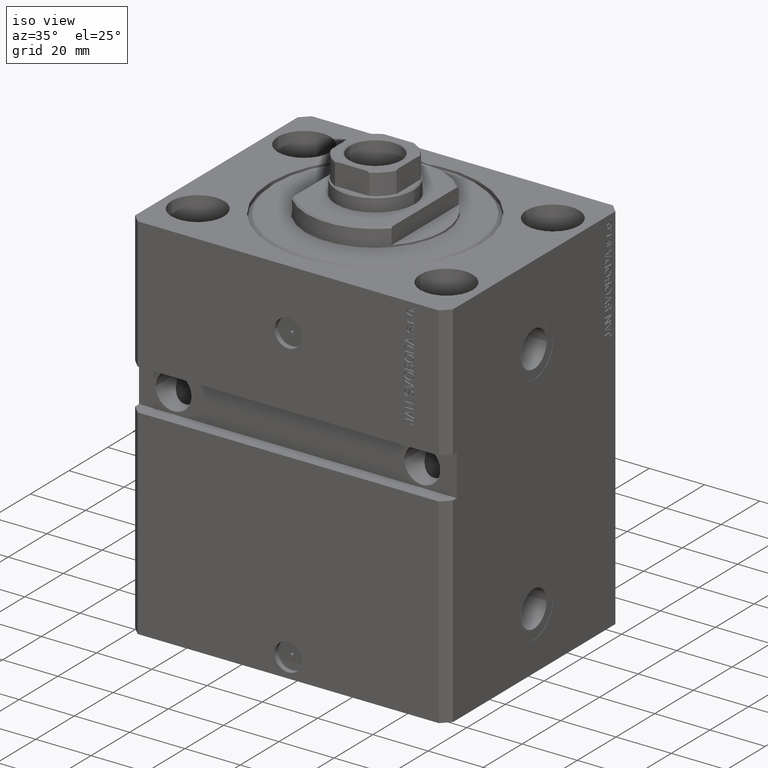
[diagram: clean part render]
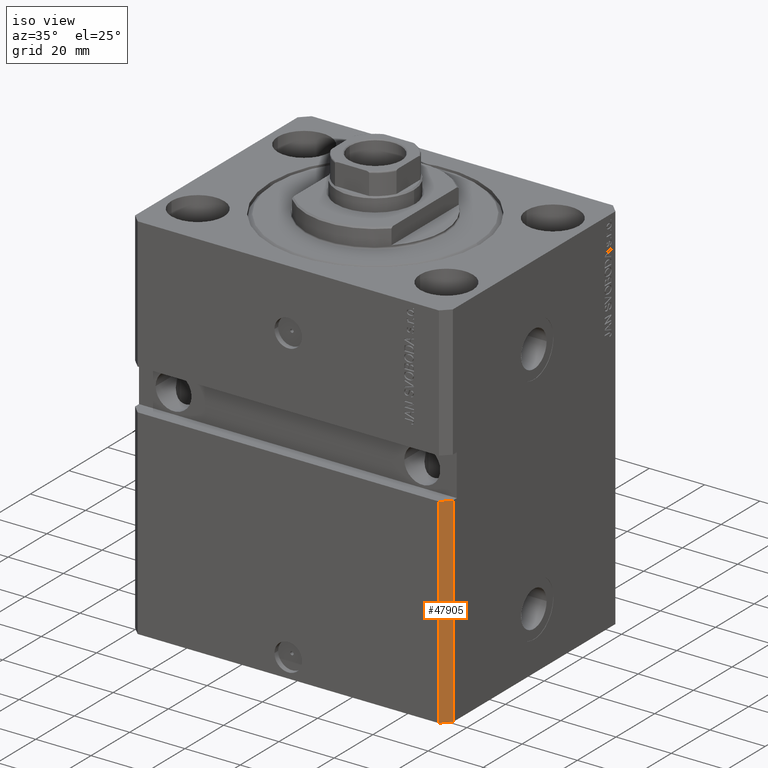
[diagram: same view with one face highlighted and labeled with its STEP entity id]
A machine part, iso view. The second image highlights one B-rep face of the part: STEP entity #47905.
In plain terms, the highlighted planar face has unit normal (0.7071, -0.7071, 0).
Its self-contained STEP definition (entity closure, byte-faithful):
#928 = LINE ( 'NONE', #42037, #15270 ) ;
#1028 = CARTESIAN_POINT ( 'NONE',  ( 57.50000000000000711, -41.99999999999998579, -135.0000000000000000 ) ) ;
#1583 = CARTESIAN_POINT ( 'NONE',  ( 57.50000000000000711, -41.99999999999998579, -62.49999999999999289 ) ) ;
#4772 = DIRECTION ( 'NONE',  ( 0.7071067811865483499, 0.7071067811865466846, 0.000000000000000000 ) ) ;
#4846 = VECTOR ( 'NONE', #40108, 1000.000000000000000 ) ;
#8244 = DIRECTION ( 'NONE',  ( 0.7071067811865466846, -0.7071067811865483499, 0.000000000000000000 ) ) ;
#9115 = EDGE_LOOP ( 'NONE', ( #18544, #44737, #29016, #25799 ) ) ;
#9325 = CARTESIAN_POINT ( 'NONE',  ( 54.50000000000000711, -44.99999999999998579, -135.0000000000000000 ) ) ;
#9341 = LINE ( 'NONE', #28270, #4846 ) ;
#12480 = DIRECTION ( 'NONE',  ( 0.000000000000000000, 0.000000000000000000, 1.000000000000000000 ) ) ;
#13237 = DIRECTION ( 'NONE',  ( 0.7071067811865483499, 0.7071067811865466846, 0.000000000000000000 ) ) ;
#14372 = CARTESIAN_POINT ( 'NONE',  ( 54.49999999999997868, -44.99999999999998579, -62.49999999999999289 ) ) ;
#14479 = VECTOR ( 'NONE', #13237, 1000.000000000000000 ) ;
#15270 = VECTOR ( 'NONE', #12480, 1000.000000000000000 ) ;
#16766 = DIRECTION ( 'NONE',  ( 0.000000000000000000, 0.000000000000000000, 1.000000000000000000 ) ) ;
#18544 = ORIENTED_EDGE ( 'NONE', *, *, #40875, .F. ) ;
#20184 = VERTEX_POINT ( 'NONE', #1583 ) ;
#21567 = EDGE_CURVE ( 'NONE', #23258, #20184, #23647, .T. ) ;
#22343 = CARTESIAN_POINT ( 'NONE',  ( 54.50000000000000711, -44.99999999999998579, -135.0000000000000000 ) ) ;
#23176 = EDGE_CURVE ( 'NONE', #39860, #34747, #928, .T. ) ;
#23258 = VERTEX_POINT ( 'NONE', #45483 ) ;
#23552 = EDGE_CURVE ( 'NONE', #39860, #23258, #39851, .T. ) ;
#23647 = LINE ( 'NONE', #1028, #26217 ) ;
#25799 = ORIENTED_EDGE ( 'NONE', *, *, #21567, .T. ) ;
#26217 = VECTOR ( 'NONE', #16766, 1000.000000000000000 ) ;
#28270 = CARTESIAN_POINT ( 'NONE',  ( 54.50000000000000711, -44.99999999999998579, -62.50000000000000000 ) ) ;
#29016 = ORIENTED_EDGE ( 'NONE', *, *, #23552, .T. ) ;
#30621 = FACE_OUTER_BOUND ( 'NONE', #9115, .T. ) ;
#34747 = VERTEX_POINT ( 'NONE', #14372 ) ;
#34766 = AXIS2_PLACEMENT_3D ( 'NONE', #45658, #8244, #4772 ) ;
#38536 = PLANE ( 'NONE',  #34766 ) ;
#39851 = LINE ( 'NONE', #9325, #14479 ) ;
#39860 = VERTEX_POINT ( 'NONE', #22343 ) ;
#40108 = DIRECTION ( 'NONE',  ( 0.7071067811865483499, 0.7071067811865466846, 4.266555594249394319E-17 ) ) ;
#40875 = EDGE_CURVE ( 'NONE', #34747, #20184, #9341, .T. ) ;
#42037 = CARTESIAN_POINT ( 'NONE',  ( 54.50000000000000711, -44.99999999999998579, -135.0000000000000000 ) ) ;
#44737 = ORIENTED_EDGE ( 'NONE', *, *, #23176, .F. ) ;
#45483 = CARTESIAN_POINT ( 'NONE',  ( 57.50000000000000711, -41.99999999999998579, -135.0000000000000000 ) ) ;
#45658 = CARTESIAN_POINT ( 'NONE',  ( 54.50000000000000711, -44.99999999999998579, -135.0000000000000000 ) ) ;
#47905 = ADVANCED_FACE ( 'NONE', ( #30621 ), #38536, .T. ) ;